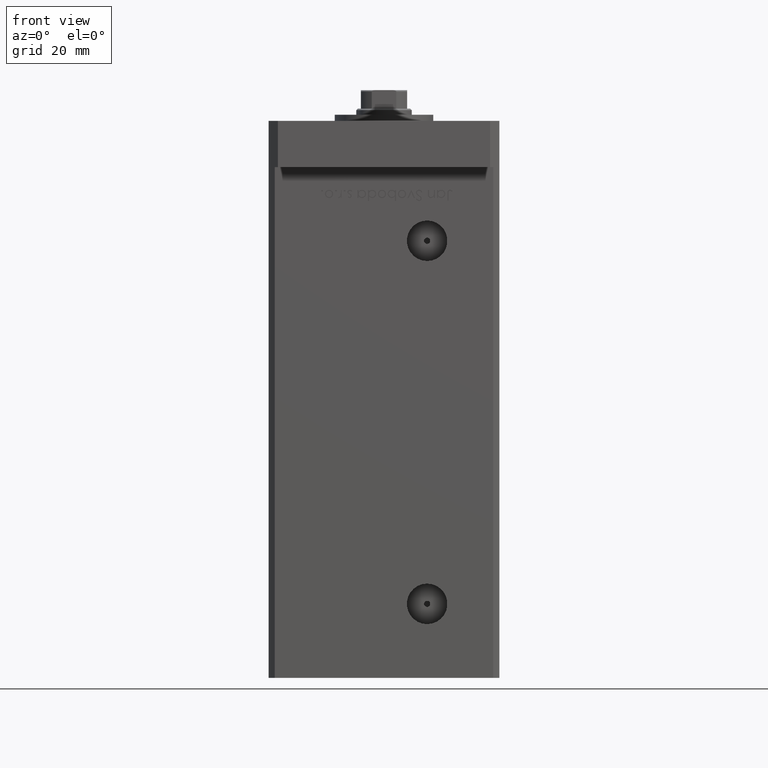
[diagram: clean part render]
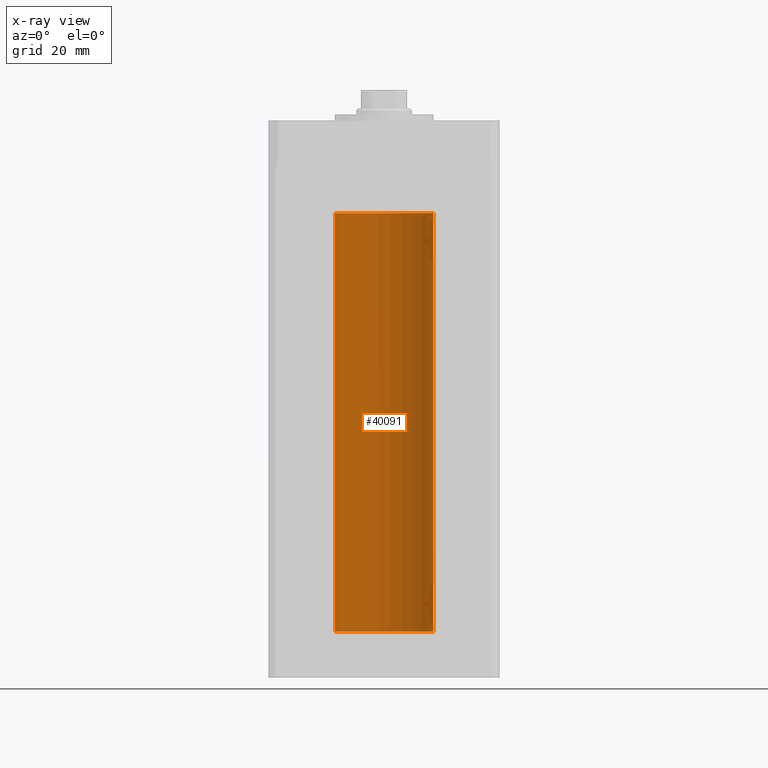
[diagram: x-ray — body ghosted, one internal face saturated and labeled with its STEP entity id]
A machine part, front view, then the same camera in x-ray: the body is ghosted and one INTERNAL B-rep face — a face not visible from any outside direction — is saturated and labeled: STEP entity #40091.
In plain terms, the highlighted cylindrical surface (partial cylindrical patch) has radius 16 mm, axis along (-0, -0, -1).
Its self-contained STEP definition (entity closure, byte-faithful):
#812 = CARTESIAN_POINT ( 'NONE',  ( 16.00000000000000000, 1.959434878635765131E-15, 136.0000000000000000 ) ) ;
#2701 = ORIENTED_EDGE ( 'NONE', *, *, #39095, .F. ) ;
#3922 = CARTESIAN_POINT ( 'NONE',  ( 16.00000000000000000, 1.959434878635765131E-15, 136.0000000000000000 ) ) ;
#4199 = DIRECTION ( 'NONE',  ( -0.000000000000000000, -0.000000000000000000, -1.000000000000000000 ) ) ;
#6770 = CARTESIAN_POINT ( 'NONE',  ( -16.00000000000000000, 0.000000000000000000, 0.000000000000000000 ) ) ;
#8885 = CIRCLE ( 'NONE', #47821, 16.00000000000000000 ) ;
#8968 = DIRECTION ( 'NONE',  ( 1.000000000000000000, 0.000000000000000000, 0.000000000000000000 ) ) ;
#10274 = ORIENTED_EDGE ( 'NONE', *, *, #36470, .T. ) ;
#12055 = VECTOR ( 'NONE', #19130, 1000.000000000000000 ) ;
#12308 = CARTESIAN_POINT ( 'NONE',  ( 0.000000000000000000, 0.000000000000000000, 136.0000000000000000 ) ) ;
#16124 = DIRECTION ( 'NONE',  ( 1.000000000000000000, 0.000000000000000000, 0.000000000000000000 ) ) ;
#19130 = DIRECTION ( 'NONE',  ( -0.000000000000000000, -0.000000000000000000, -1.000000000000000000 ) ) ;
#19773 = CYLINDRICAL_SURFACE ( 'NONE', #53131, 16.00000000000000000 ) ;
#20500 = LINE ( 'NONE', #3922, #40117 ) ;
#21970 = ORIENTED_EDGE ( 'NONE', *, *, #31892, .F. ) ;
#22488 = EDGE_CURVE ( 'NONE', #36042, #37865, #51094, .T. ) ;
#23031 = VERTEX_POINT ( 'NONE', #812 ) ;
#24626 = DIRECTION ( 'NONE',  ( -1.000000000000000000, 0.000000000000000000, 0.000000000000000000 ) ) ;
#24894 = CARTESIAN_POINT ( 'NONE',  ( 0.000000000000000000, 0.000000000000000000, 136.0000000000000000 ) ) ;
#28172 = DIRECTION ( 'NONE',  ( -0.000000000000000000, -0.000000000000000000, -1.000000000000000000 ) ) ;
#29302 = DIRECTION ( 'NONE',  ( -0.000000000000000000, 0.000000000000000000, 1.000000000000000000 ) ) ;
#31892 = EDGE_CURVE ( 'NONE', #40191, #37865, #36414, .T. ) ;
#35393 = CARTESIAN_POINT ( 'NONE',  ( -16.00000000000000000, 0.000000000000000000, 136.0000000000000000 ) ) ;
#36042 = VERTEX_POINT ( 'NONE', #35393 ) ;
#36414 = CIRCLE ( 'NONE', #52862, 16.00000000000000000 ) ;
#36470 = EDGE_CURVE ( 'NONE', #23031, #36042, #8885, .T. ) ;
#37147 = CARTESIAN_POINT ( 'NONE',  ( 0.000000000000000000, 0.000000000000000000, 0.000000000000000000 ) ) ;
#37865 = VERTEX_POINT ( 'NONE', #6770 ) ;
#39095 = EDGE_CURVE ( 'NONE', #23031, #40191, #20500, .T. ) ;
#40091 = ADVANCED_FACE ( 'NONE', ( #49547 ), #19773, .F. ) ;
#40117 = VECTOR ( 'NONE', #4199, 1000.000000000000000 ) ;
#40191 = VERTEX_POINT ( 'NONE', #45476 ) ;
#40468 = DIRECTION ( 'NONE',  ( -0.000000000000000000, 0.000000000000000000, 1.000000000000000000 ) ) ;
#45476 = CARTESIAN_POINT ( 'NONE',  ( 16.00000000000000000, 1.959434878635765131E-15, 0.000000000000000000 ) ) ;
#47821 = AXIS2_PLACEMENT_3D ( 'NONE', #12308, #40468, #16124 ) ;
#49547 = FACE_OUTER_BOUND ( 'NONE', #50442, .T. ) ;
#50442 = EDGE_LOOP ( 'NONE', ( #2701, #10274, #50921, #21970 ) ) ;
#50921 = ORIENTED_EDGE ( 'NONE', *, *, #22488, .T. ) ;
#51094 = LINE ( 'NONE', #51894, #12055 ) ;
#51894 = CARTESIAN_POINT ( 'NONE',  ( -16.00000000000000000, 0.000000000000000000, 136.0000000000000000 ) ) ;
#52862 = AXIS2_PLACEMENT_3D ( 'NONE', #37147, #29302, #8968 ) ;
#53131 = AXIS2_PLACEMENT_3D ( 'NONE', #24894, #28172, #24626 ) ;